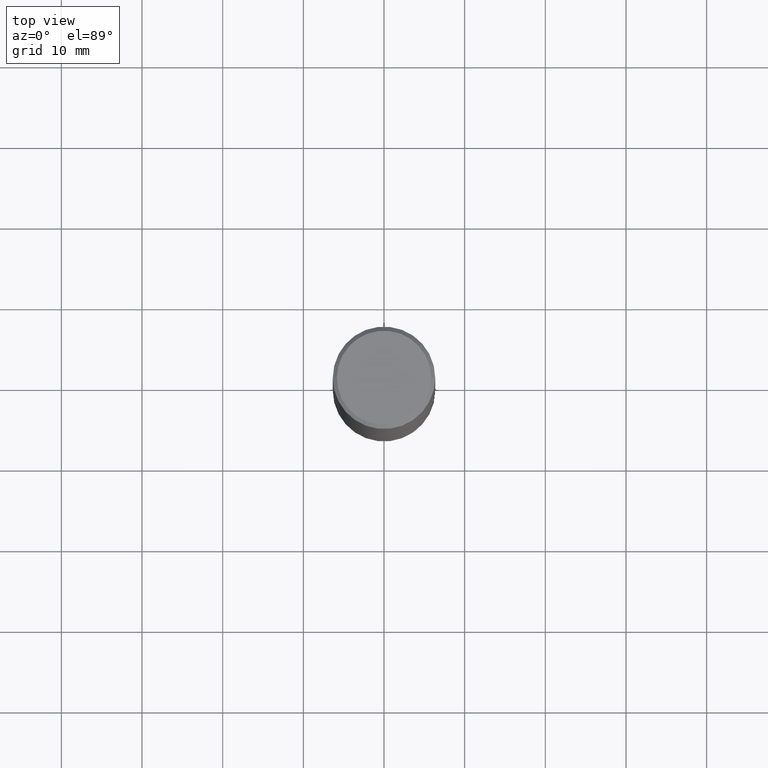
[diagram: clean part render]
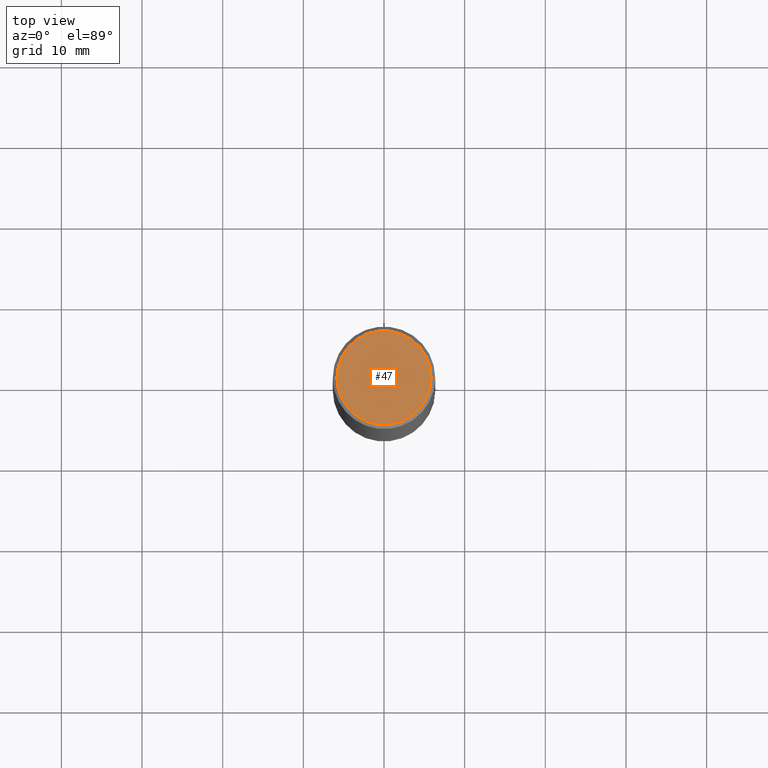
[diagram: same view with one face highlighted and labeled with its STEP entity id]
A machine part, top view. The second image highlights one B-rep face of the part: STEP entity #47.
In plain terms, the highlighted planar face has unit normal (0, -0, -1).
Its self-contained STEP definition (entity closure, byte-faithful):
#19 = VERTEX_POINT ( 'NONE', #163 ) ;
#29 = EDGE_LOOP ( 'NONE', ( #193, #290 ) ) ;
#42 = FACE_OUTER_BOUND ( 'NONE', #29, .T. ) ;
#44 = CIRCLE ( 'NONE', #159, 0.2299999999999997324 ) ;
#47 = ADVANCED_FACE ( 'NONE', ( #42 ), #77, .F. ) ;
#70 = CARTESIAN_POINT ( 'NONE',  ( -1.043851414335219820E-46, 1.490343170380447200E-32, 4.268512490100411279E-18 ) ) ;
#77 = PLANE ( 'NONE',  #208 ) ;
#93 = DIRECTION ( 'NONE',  ( -2.445468806185136597E-29, 3.491481338843145583E-15, 1.000000000000000000 ) ) ;
#110 = CARTESIAN_POINT ( 'NONE',  ( -0.2299999999999997324, 1.640996229256270744E-15, 4.268512490089056766E-18 ) ) ;
#111 = DIRECTION ( 'NONE',  ( 2.438088387897960049E-29, -3.491481338843145188E-15, -1.000000000000000000 ) ) ;
#138 = CARTESIAN_POINT ( 'NONE',  ( -1.043851414335219820E-46, 1.490343170380447200E-32, 4.268512490100411279E-18 ) ) ;
#158 = AXIS2_PLACEMENT_3D ( 'NONE', #70, #93, #244 ) ;
#159 = AXIS2_PLACEMENT_3D ( 'NONE', #138, #253, #358 ) ;
#163 = CARTESIAN_POINT ( 'NONE',  ( 0.2299999999999997324, -1.681434332853597433E-15, 4.268512490111905999E-18 ) ) ;
#185 = EDGE_CURVE ( 'NONE', #303, #19, #305, .T. ) ;
#193 = ORIENTED_EDGE ( 'NONE', *, *, #185, .T. ) ;
#208 = AXIS2_PLACEMENT_3D ( 'NONE', #280, #111, #337 ) ;
#244 = DIRECTION ( 'NONE',  ( 1.000000000000000000, -6.982962677686266711E-15, 4.876225828469314487E-29 ) ) ;
#253 = DIRECTION ( 'NONE',  ( -2.445468806185136597E-29, 3.491481338843145583E-15, 1.000000000000000000 ) ) ;
#280 = CARTESIAN_POINT ( 'NONE',  ( 1.606081415867839292E-15, 0.2299999999999997324, -8.009064516888723911E-16 ) ) ;
#290 = ORIENTED_EDGE ( 'NONE', *, *, #315, .T. ) ;
#303 = VERTEX_POINT ( 'NONE', #110 ) ;
#305 = CIRCLE ( 'NONE', #158, 0.2299999999999997324 ) ;
#315 = EDGE_CURVE ( 'NONE', #19, #303, #44, .T. ) ;
#337 = DIRECTION ( 'NONE',  ( -1.000000000000000000, 6.982962677686265922E-15, -4.876176775795935793E-29 ) ) ;
#358 = DIRECTION ( 'NONE',  ( 1.000000000000000000, -6.982962677686266711E-15, 4.876225828469314487E-29 ) ) ;